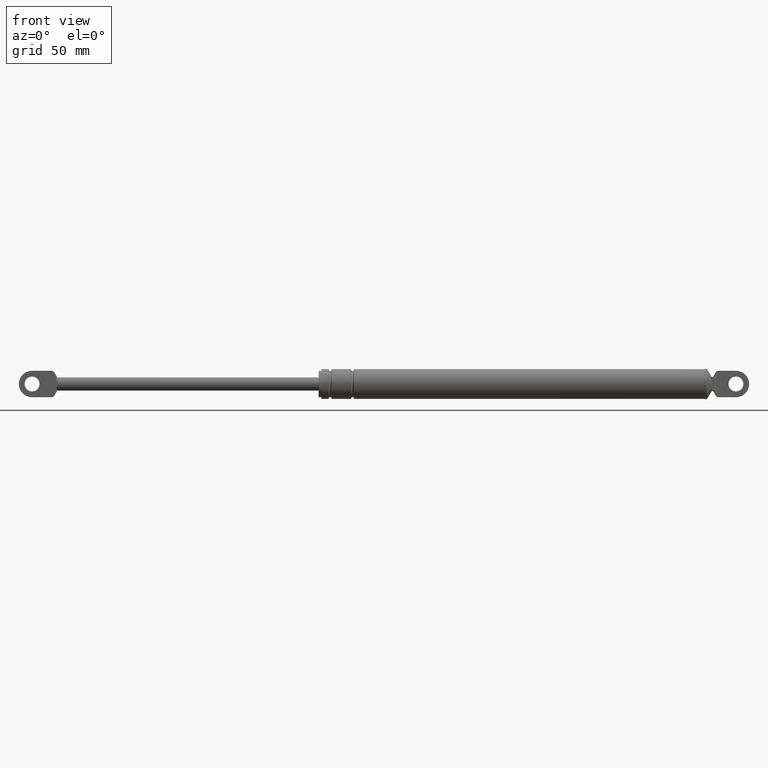
[diagram: clean part render]
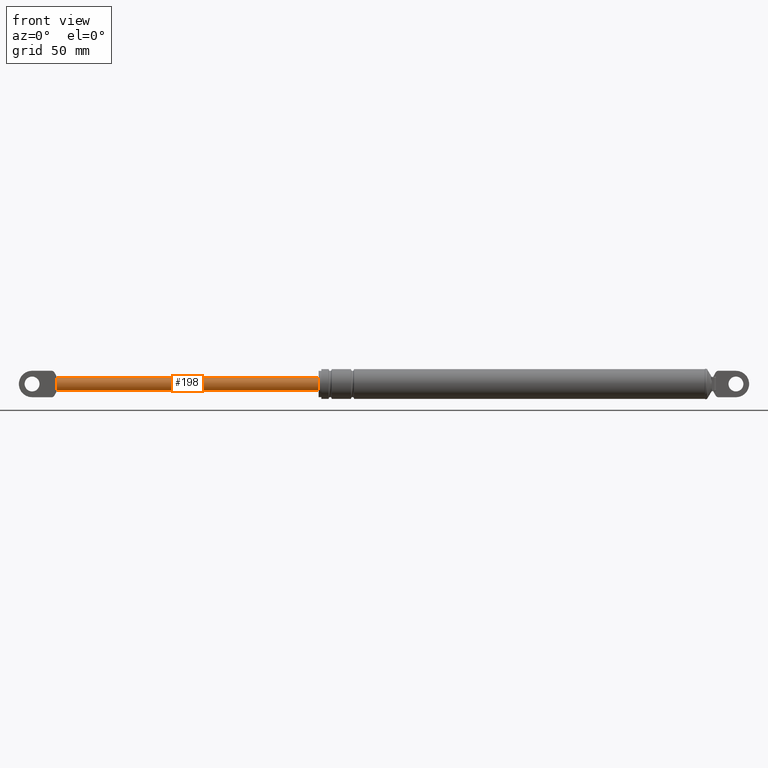
[diagram: same view with one face highlighted and labeled with its STEP entity id]
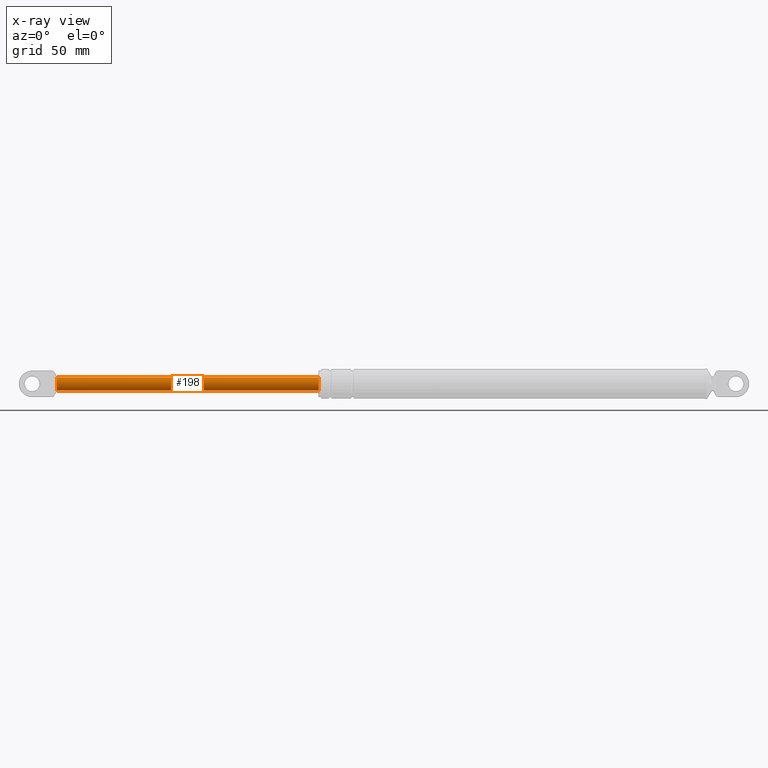
[diagram: x-ray of the same camera — body ghosted, the highlighted face saturated]
A machine part, front view. The second image highlights one B-rep face of the part: STEP entity #198.
The next image is the same camera in x-ray: the body ghosted, the highlighted face saturated — about 0% of this face is hidden behind the body in this view.
In plain terms, the highlighted cylindrical surface (edge-blend (fillet) strip) has radius 4 mm, axis along (1, 0, 0).
Its self-contained STEP definition (entity closure, byte-faithful):
#198=ADVANCED_FACE('',(#1071),#1070,.T.);
#1070=CYLINDRICAL_SURFACE('',#1840,4.00000000000E+000);
#1071=FACE_OUTER_BOUND('',#1841,.T.);
#1837=CARTESIAN_POINT('',(0.00000000000E+000,0.00000000000E+000,2.11039985953E+002));
#1838=DIRECTION('',(1.00000000000E+000,-0.00000000000E+000,-0.00000000000E+000));
#1839=DIRECTION('',(-0.00000000000E+000,-0.00000000000E+000,-1.00000000000E+000));
#1840=AXIS2_PLACEMENT_3D('',#1837,#1838,#1839);
#1841=EDGE_LOOP('',(#2266,#2267,#2268,#2269,#2270,#2271));
#2266=ORIENTED_EDGE('',*,*,#2470,.F.);
#2267=ORIENTED_EDGE('',*,*,#2462,.F.);
#2268=ORIENTED_EDGE('',*,*,#2466,.F.);
#2269=ORIENTED_EDGE('',*,*,#2490,.T.);
#2270=ORIENTED_EDGE('',*,*,#2479,.T.);
#2271=ORIENTED_EDGE('',*,*,#2491,.F.);
#2462=EDGE_CURVE('',#3702,#3703,#3704,.T.);
#2466=EDGE_CURVE('',#3723,#3702,#3730,.T.);
#2470=EDGE_CURVE('',#3703,#3755,#3756,.T.);
#2479=EDGE_CURVE('',#3814,#3815,#3816,.T.);
#2490=EDGE_CURVE('',#3723,#3814,#3888,.T.);
#2491=EDGE_CURVE('',#3755,#3815,#3894,.T.);
#3702=VERTEX_POINT('',#4709);
#3703=VERTEX_POINT('',#4710);
#3704=CIRCLE('',#4714,4.00000000000E+000);
#3723=VERTEX_POINT('',#4722);
#3730=CIRCLE('',#4730,4.00000000000E+000);
#3755=VERTEX_POINT('',#4741);
#3756=CIRCLE('',#4745,4.00000000000E+000);
#3814=VERTEX_POINT('',#4777);
#3815=VERTEX_POINT('',#4778);
#3816=CIRCLE('',#4782,4.00000000000E+000);
#3888=(BOUNDED_CURVE() B_SPLINE_CURVE(1,(#4826,#4827),.UNSPECIFIED.,.F.,.F.) B_SPLINE_CURVE_WITH_KNOTS((2,2),(5.61797751113E-002,9.43820224718E-001),.UNSPECIFIED.) CURVE() GEOMETRIC_REPRESENTATION_ITEM() RATIONAL_B_SPLINE_CURVE((1.00000000000E+000,1.00000000000E+000)) REPRESENTATION_ITEM('') );
#3894=(BOUNDED_CURVE() B_SPLINE_CURVE(1,(#4828,#4829),.UNSPECIFIED.,.F.,.F.) B_SPLINE_CURVE_WITH_KNOTS((2,2),(5.61797752809E-002,9.43820224719E-001),.UNSPECIFIED.) CURVE() GEOMETRIC_REPRESENTATION_ITEM() RATIONAL_B_SPLINE_CURVE((7.50000000000E-001,7.50000000000E-001)) REPRESENTATION_ITEM('') );
#4709=CARTESIAN_POINT('',(1.38160986636E+001,-1.60000000000E+000,2.07373925397E+002));
#4710=CARTESIAN_POINT('',(1.38160986636E+001,-1.60000000000E+000,2.14706046509E+002));
#4711=CARTESIAN_POINT('',(1.38160986636E+001,0.00000000000E+000,2.11039985953E+002));
#4712=DIRECTION('',(-1.00000000000E+000,0.00000000000E+000,0.00000000000E+000));
#4713=DIRECTION('',(-0.00000000000E+000,-0.00000000000E+000,-1.00000000000E+000));
#4714=AXIS2_PLACEMENT_3D('',#4711,#4712,#4713);
#4722=CARTESIAN_POINT('',(1.38160986636E+001,1.20898364185E-013,2.07039985953E+002));
#4727=CARTESIAN_POINT('',(1.38160986636E+001,0.00000000000E+000,2.11039985953E+002));
#4728=DIRECTION('',(-1.00000000000E+000,0.00000000000E+000,0.00000000000E+000));
#4729=DIRECTION('',(-0.00000000000E+000,4.00000000000E-001,-9.16515138991E-001));
#4730=AXIS2_PLACEMENT_3D('',#4727,#4728,#4729);
#4741=CARTESIAN_POINT('',(1.38160986636E+001,5.49543672780E-007,2.15039985953E+002));
#4742=CARTESIAN_POINT('',(1.38160986636E+001,0.00000000000E+000,2.11039985953E+002));
#4743=DIRECTION('',(-1.00000000000E+000,0.00000000000E+000,0.00000000000E+000));
#4744=DIRECTION('',(-0.00000000000E+000,-0.00000000000E+000,-1.00000000000E+000));
#4745=AXIS2_PLACEMENT_3D('',#4742,#4743,#4744);
#4777=CARTESIAN_POINT('',(1.71816098664E+002,4.44089209850E-016,2.07039985953E+002));
#4778=CARTESIAN_POINT('',(1.71816098664E+002,0.00000000000E+000,2.15039985953E+002));
#4779=CARTESIAN_POINT('',(1.71816098664E+002,0.00000000000E+000,2.11039985953E+002));
#4780=DIRECTION('',(-1.00000000000E+000,0.00000000000E+000,0.00000000000E+000));
#4781=DIRECTION('',(0.00000000000E+000,-1.22460635382E-016,1.00000000000E+000));
#4782=AXIS2_PLACEMENT_3D('',#4779,#4780,#4781);
#4826=CARTESIAN_POINT('',(1.38160986334E+001,0.00000000000E+000,2.07039985953E+002));
#4827=CARTESIAN_POINT('',(1.71816098663E+002,0.00000000000E+000,2.07039985953E+002));
#4828=CARTESIAN_POINT('',(1.38160986636E+001,-1.48029736617E-016,2.15039985953E+002));
#4829=CARTESIAN_POINT('',(1.71816098664E+002,-1.48029736617E-016,2.15039985953E+002));